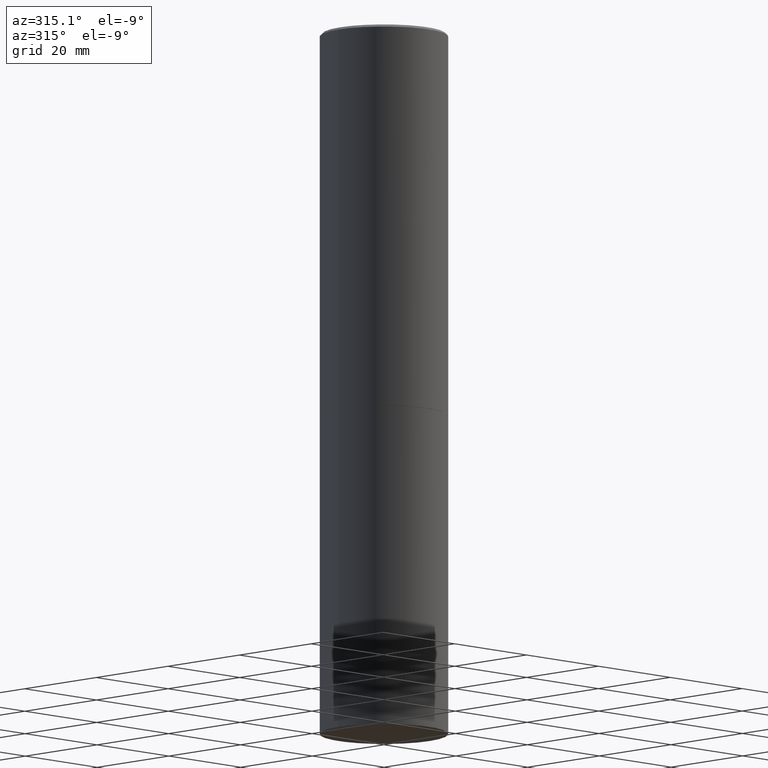
[diagram: clean part render]
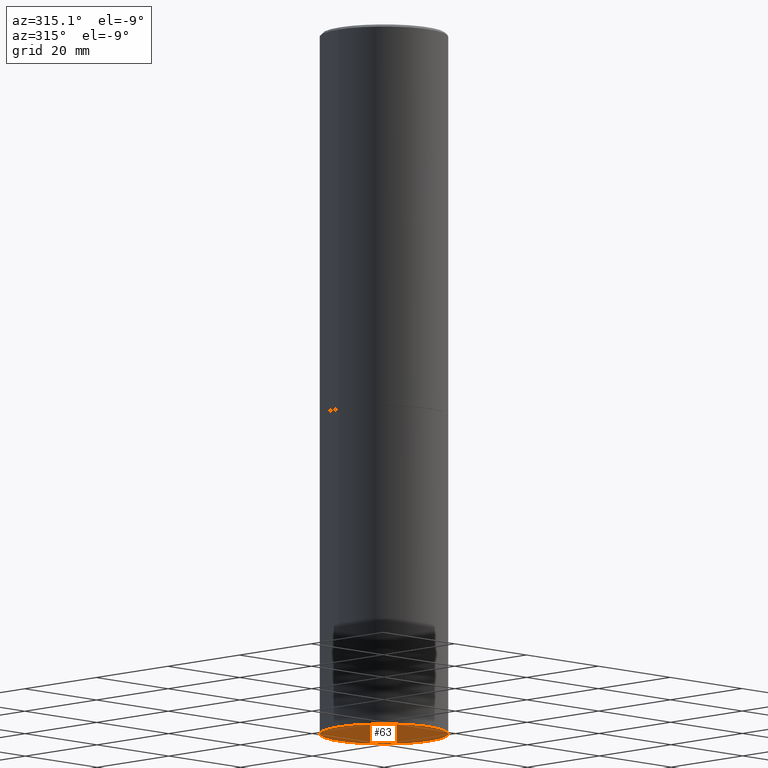
[diagram: same view with one face highlighted and labeled with its STEP entity id]
A machine part, auxiliary view. The second image highlights one B-rep face of the part: STEP entity #63.
In plain terms, the highlighted planar face has unit normal (0, -0, -1).
Its self-contained STEP definition (entity closure, byte-faithful):
#14 = DIRECTION ( 'NONE',  ( 1.000000000000000000, -6.982962677686262766E-15, 0.000000000000000000 ) ) ;
#63 = ADVANCED_FACE ( 'NONE', ( #318 ), #129, .T. ) ;
#65 = CARTESIAN_POINT ( 'NONE',  ( 3.491481338843267462E-15, 0.4999999999999807931, -5.500000000000001776 ) ) ;
#79 = CARTESIAN_POINT ( 'NONE',  ( 1.345007843401824904E-28, -1.920314736363729972E-14, -5.500000000000000000 ) ) ;
#81 = VERTEX_POINT ( 'NONE', #189 ) ;
#95 = CARTESIAN_POINT ( 'NONE',  ( 1.345007843401824904E-28, -1.920314736363729972E-14, -5.500000000000000000 ) ) ;
#96 = ORIENTED_EDGE ( 'NONE', *, *, #352, .F. ) ;
#129 = PLANE ( 'NONE',  #253 ) ;
#162 = EDGE_CURVE ( 'NONE', #81, #335, #235, .T. ) ;
#184 = DIRECTION ( 'NONE',  ( -1.000000000000000000, 6.982962677686265922E-15, -4.876176775795935793E-29 ) ) ;
#189 = CARTESIAN_POINT ( 'NONE',  ( 0.5000000000000000000, -2.269462870248043307E-14, -5.500000000000000000 ) ) ;
#194 = DIRECTION ( 'NONE',  ( -2.445468806185136597E-29, 3.491481338843145583E-15, 1.000000000000000000 ) ) ;
#212 = DIRECTION ( 'NONE',  ( -2.445468806185136597E-29, 3.491481338843145583E-15, 1.000000000000000000 ) ) ;
#235 = CIRCLE ( 'NONE', #282, 0.5000000000000000000 ) ;
#237 = DIRECTION ( 'NONE',  ( 2.438088387897960049E-29, -3.491481338843145188E-15, -1.000000000000000000 ) ) ;
#253 = AXIS2_PLACEMENT_3D ( 'NONE', #65, #237, #184 ) ;
#275 = ORIENTED_EDGE ( 'NONE', *, *, #162, .F. ) ;
#282 = AXIS2_PLACEMENT_3D ( 'NONE', #95, #212, #14 ) ;
#289 = CIRCLE ( 'NONE', #302, 0.5000000000000000000 ) ;
#302 = AXIS2_PLACEMENT_3D ( 'NONE', #79, #194, #304 ) ;
#304 = DIRECTION ( 'NONE',  ( 1.000000000000000000, -6.982962677686262766E-15, 0.000000000000000000 ) ) ;
#318 = FACE_OUTER_BOUND ( 'NONE', #337, .T. ) ;
#331 = CARTESIAN_POINT ( 'NONE',  ( -0.5000000000000000000, -1.128608201128286632E-14, -5.500000000000000000 ) ) ;
#335 = VERTEX_POINT ( 'NONE', #331 ) ;
#337 = EDGE_LOOP ( 'NONE', ( #275, #96 ) ) ;
#352 = EDGE_CURVE ( 'NONE', #335, #81, #289, .T. ) ;